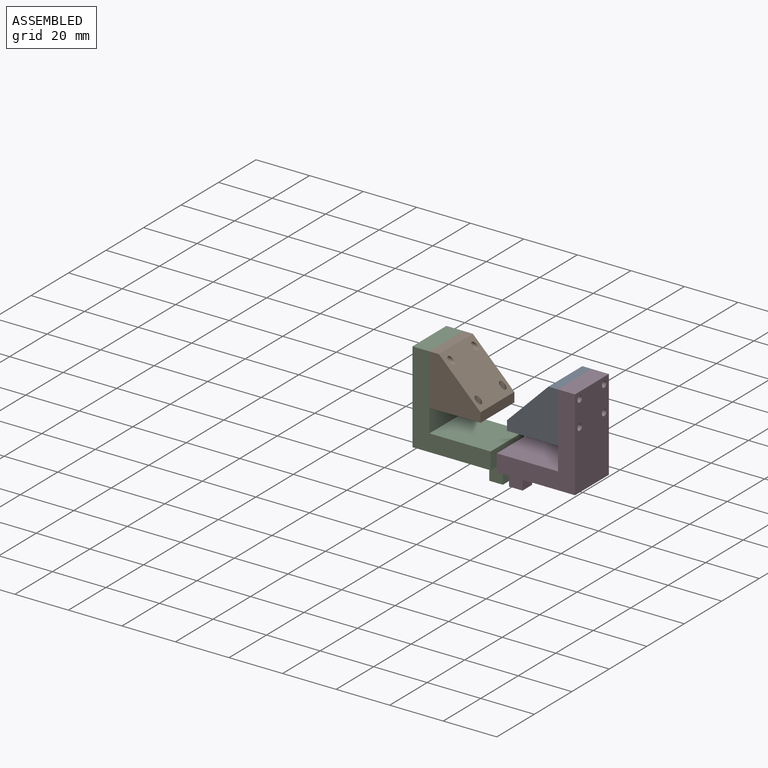
[diagram: assembled view]
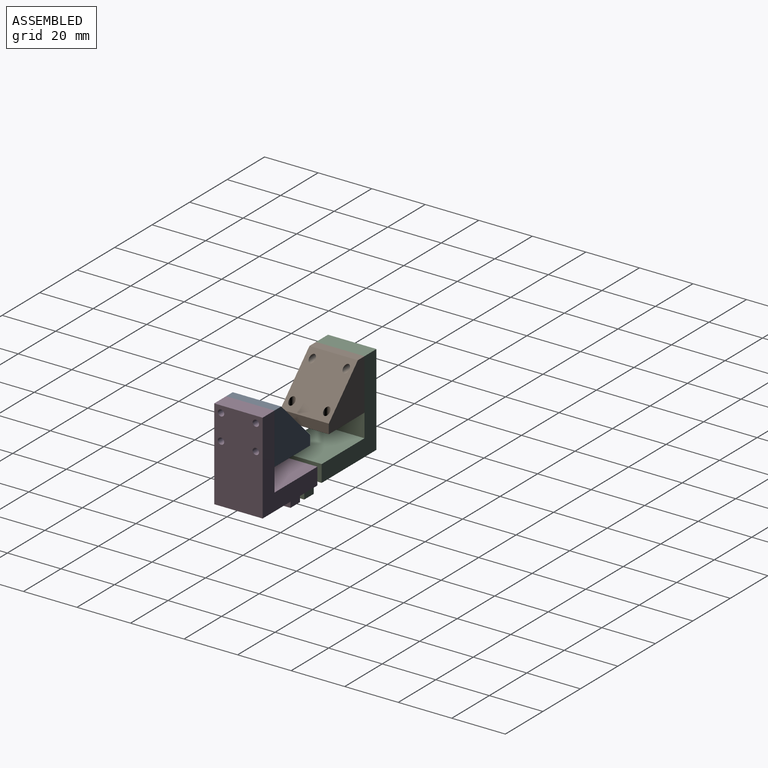
[diagram: assembled view, second angle]
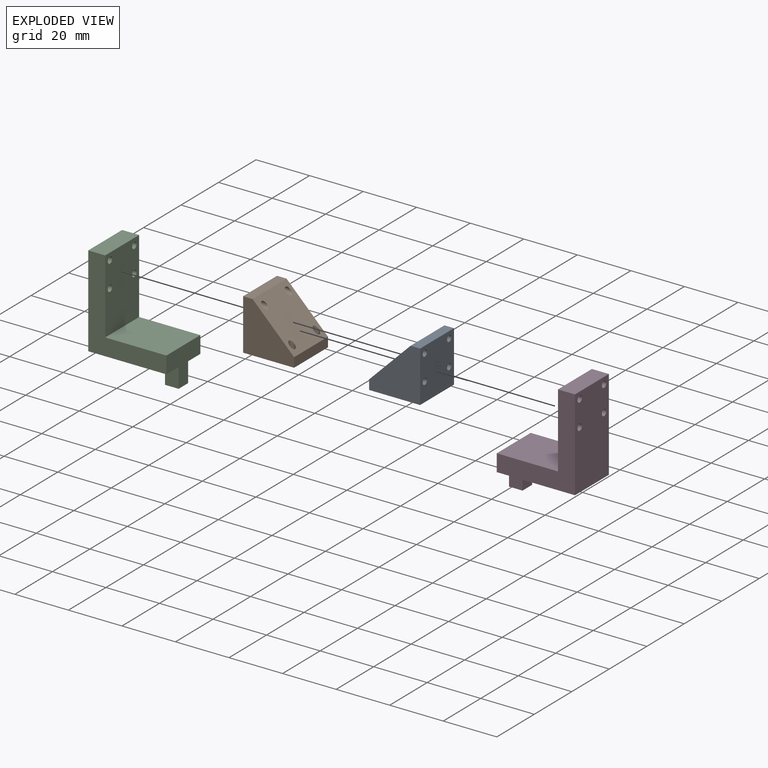
[diagram: exploded view]
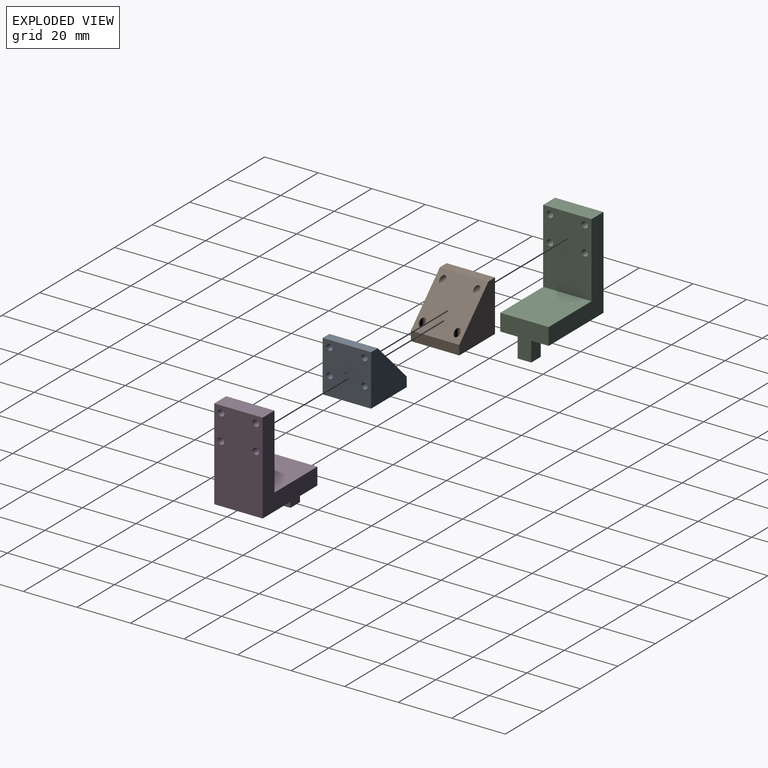
[diagram: exploded view, second angle]
ASSEMBLY  parts=4 mates=2
PART A: 27 faces, bbox 19.5x18.6x19.5 mm
  f0: cylinder r=1.14mm len=7.62mm, axis (0,0,-1), area 49.1mm2, adj f1,f7,f14,f19,f20,f21,f22
  f1: plane 1.9x0.51mm, normal (0,0,-1), area 0.7mm2, adj f0,f13
  f2: plane 18.09x3.56mm, normal (-1,0,0), area 64.3mm2, adj f4,f5,f7,f8
  f3: plane 18.09x3.56mm, normal (0,0,1), area 64.3mm2, adj f4,f5,f6,f8
  f4: plane 19.05x19.05mm, normal (0,1,0), area 242.9mm2, adj f2,f3,f6,f7,f8
  f5: plane 19.05x19.05mm, normal (0,-1,0), area 242.9mm2, adj f2,f3,f6,f7,f8
  f6: plane 19.05x18.09mm, normal (1,0,0), area 328.1mm2, adj f3,f4,f5,f7,f14,f23,f25,f26
  f7: plane 19.05x18.09mm, normal (0,0,-1), area 328.1mm2, adj f0,f2,f4,f5,f6,f9,f10,f11
  f8: plane 18.57x15.97mm, normal (-0.71,0,0.71), area 373.1mm2, adj f2,f3,f4,f5,f9,f10,f25,f26
  f9: cylinder r=1.14mm len=7.25mm, axis (0,0,-1), area 43.8mm2, adj f7,f8
  f10: cylinder r=1.14mm len=7.25mm, axis (0,0,-1), area 43.8mm2, adj f7,f8
  f11: cylinder r=1.14mm len=7.62mm, axis (0,0,-1), area 49.3mm2, adj f7,f12,f23,f24
  f12: plane 2.09x2.09mm, normal (0,0,-1), area 1.3mm2, adj f11,f23,f24
  f13: plane 1.9x0.51mm, normal (1,0,0), area 0.7mm2, adj f1,f14
  f14: cylinder r=1.14mm len=7.62mm, axis (1,0,0), area 49.1mm2, adj f0,f6,f13,f15,f16,f17,f18
  f15: plane 1.27x0.19mm, normal (0,0,-1), area 0.2mm2, adj f14,f16
  f16: cylinder r=1.14mm len=1.27mm, axis (0,0,-1), area 0.4mm2, adj f14,f15,f21
  f17: plane 1.27x0.19mm, normal (0,0,-1), area 0.2mm2, adj f14,f18
  f18: cylinder r=1.14mm len=1.27mm, axis (0,0,-1), area 0.4mm2, adj f14,f17,f20
  f19: plane 1.27x0.19mm, normal (1,0,0), area 0.2mm2, adj f0,f20
  f20: cylinder r=1.14mm len=1.27mm, axis (1,0,0), area 0.4mm2, adj f0,f18,f19
  f21: cylinder r=1.14mm len=1.27mm, axis (1,0,0), area 0.4mm2, adj f0,f16,f22
  f22: plane 1.27x0.19mm, normal (1,0,0), area 0.2mm2, adj f0,f21
  f23: cylinder r=1.14mm len=7.62mm, axis (1,0,0), area 49.4mm2, adj f6,f11,f12,f24
  f24: plane 2.09x2.09mm, normal (1,0,0), area 1.3mm2, adj f11,f12,f23
  f25: cylinder r=1.14mm len=7.24mm, axis (1,0,0), area 43.8mm2, adj f6,f8
  f26: cylinder r=1.14mm len=7.24mm, axis (1,0,0), area 43.8mm2, adj f6,f8
PART B: same geometry as A
PART C: 16 faces, bbox 29.2x18.1x41.4 mm
  f0: plane 27.69x18.09mm, normal (-1,0,0), area 482.9mm2, adj f1,f3,f5,f6,f8,f9,f10,f11
  f1: plane 34.04x29.21mm, normal (0,-1,0), area 361.3mm2, adj f0,f2,f4,f5,f6,f7
  f2: plane 34.04x18.09mm, normal (1,0,0), area 597.7mm2, adj f1,f3,f4,f5,f8,f9,f10,f11
  f3: plane 34.04x29.21mm, normal (0,1,0), area 361.3mm2, adj f0,f2,f4,f5,f6,f7
  f4: plane 29.21x18.09mm, normal (0,0,1), area 502.5mm2, adj f1,f2,f3,f7,f12,f13,f14
  f5: plane 18.09x6.35mm, normal (0,0,-1), area 114.8mm2, adj f0,f1,f2,f3
  f6: plane 22.86x18.09mm, normal (0,0,-1), area 413.4mm2, adj f0,f1,f3,f7
  f7: plane 18.09x13.72mm, normal (-1,0,0), area 152.3mm2, adj f1,f3,f4,f6,f13,f14,f15
  f8: cylinder r=1.19mm len=6.35mm, axis (1,0,0), area 47.5mm2, adj f0,f2
  f9: cylinder r=1.19mm len=6.35mm, axis (1,0,0), area 47.5mm2, adj f0,f2
  f10: cylinder r=1.19mm len=6.35mm, axis (1,0,0), area 47.5mm2, adj f0,f2
  f11: cylinder r=1.19mm len=6.35mm, axis (1,0,0), area 47.5mm2, adj f0,f2
  f12: plane 7.37x5.08mm, normal (1,0,0), area 37.4mm2, adj f4,f13,f14,f15
  f13: plane 7.37x5.08mm, normal (0,1,0), area 37.4mm2, adj f4,f7,f12,f15
  f14: plane 7.37x5.08mm, normal (0,-1,0), area 37.4mm2, adj f4,f7,f12,f15
  f15: plane 5.08x5.08mm, normal (0,0,1), area 25.8mm2, adj f7,f12,f13,f14
PART D: same geometry as C
PLACE A t=(24.33,2.06,-27.94)mm
PLACE B rot(axis=(0,1,0),90deg) t=(-4.62,2.06,-8.89)mm
PLACE C rot(axis=(0,-1,0),180deg) t=(-4.62,2.06,-8.89)mm
PLACE D rot(axis=(1,0,0),180deg) t=(43.38,20.15,-8.89)mm
MATE fastened C.f8 <-> B.f9  axis (-1,0,0) through (-4.62,17.61,-11.43)mm
MATE fastened D.f9 <-> A.f25  axis (1,0,0) through (43.38,17.61,-11.43)mm
